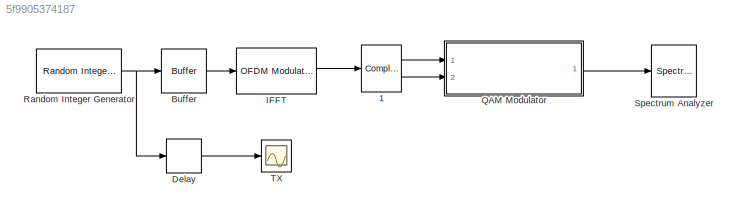
MODEL slx_5f9905374187
KIND model
BLOCK [Reference]    IFFT   REF=commofdm/OFDM Modulator
  CyclicPrefixLength = 0
  FFTLength = 8
  InsertDCNull = off
  NumGuardBandCarriers = [0 ; 0]
  NumSymbols = 1
  NumTransmitAntennas = 1
  PilotCarrierIndices = [12; 26; 40; 54]
  PilotInputPort = off
  Ports = [1, 1]
  SimulateUsing = Interpreted execution
  SourceBlock = commofdm/OFDM Modulator
  SourceType = OFDM Modulator
  WindowLength = 1
  Windowing = off
BLOCK [ComplexToRealImag]   1
  Ports = [1, 2]
  SampleTime = 1e-3
BLOCK [Buffer] Buffer
  N = 8
  TreatMby1Signals = One channel
BLOCK [Delay] Delay
  DelayLength = 16
  InitialCondition = 0
  InputPortMap = u0
  Ports = [1, 1]
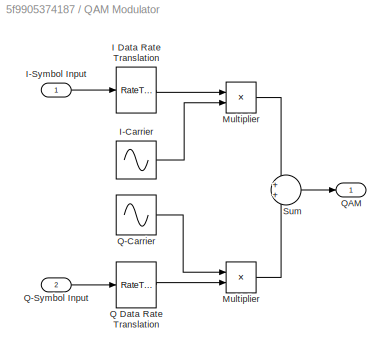
BLOCK [SubSystem] QAM Modulator
  Ports = [2, 1]
  RequestExecContextInheritance = off
BLOCK [Product] QAM Modulator/ Multiplier 
  InputSameDT = off
  OutDataTypeStr = Inherit: Inherit via internal rule
  Ports = [2, 1]
  SaturateOnIntegerOverflow = off
BLOCK [RateTransition] QAM Modulator/I Data Rate Translation
  OutPortSampleTime = 2e-6
BLOCK [Sin] QAM Modulator/I-Carrier
  Amplitude = 5
  Frequency = 40000*pi
  Phase = pi/2
  Ports = [0, 1]
  SampleTime = 2e-6
  VectorParams1D = off
BLOCK [Inport] QAM Modulator/I-Symbol Input
  IconDisplay = Port number
BLOCK [Product] QAM Modulator/Multiplier
  InputSameDT = off
  OutDataTypeStr = Inherit: Inherit via internal rule
  Ports = [2, 1]
  SaturateOnIntegerOverflow = off
BLOCK [RateTransition] QAM Modulator/Q Data Rate Translation
  OutPortSampleTime = 2e-6
BLOCK [Sin] QAM Modulator/Q-Carrier
  Amplitude = 5
  Frequency = 40000*pi
  Ports = [0, 1]
  SampleTime = 2e-6
  VectorParams1D = off
BLOCK [Inport] QAM Modulator/Q-Symbol Input
  IconDisplay = Port number
  Port = 2
BLOCK [Outport] QAM Modulator/QAM
  IconDisplay = Port number
BLOCK [Sum] QAM Modulator/Sum
  IconShape = round
  InputSameDT = off
  OutDataTypeStr = Inherit: Inherit via internal rule
  Ports = [2, 1]
  SaturateOnIntegerOverflow = off
BLOCK [Reference] Random Integer Generator  REF=commrandsrc2/Random Integer
Generator
  Ports = [0, 1]
  SourceBlock = commrandsrc2/Random Integer\nGenerator
  SourceType = Random Integer Generator
  Ts = 1e-3
  frameBased = off
  mul = 2
  orient = on
  outDataType = double
  sampPerFrame = 50
  seed = randseed
BLOCK [SpectrumAnalyzer] Spectrum Analyzer
  Ports = [1]
  ScopeSpecificationString = spbscopes.SpectrumAnalyzerBlockCfg('CurrentConfiguration', extmgr.ConfigurationSet(extmgr.Configuration('Core','General UI',true),extmgr.Configuration('Core','Source UI',true),extmgr.Configuration('Sources','WiredSimulink',true),extmgr.Configuration('Visuals','Spectrum',true,'AxesProperties',struct('Color',[0 0 0],'XColor',[0.686274509803922 0.686274509803922 0.686274509803922],'YColor',[0.6862745...<+6853ch>
BLOCK [Scope] TX
  Floating = off
  NumInputPorts = 1
  Ports = [1]
  SaveName = ScopeData2
  ShowLegends = off
  YMax = 8
  YMin = -8
LINE    IFFT :1 ->   1:1
LINE   1:1 -> QAM Modulator:1
LINE   1:2 -> QAM Modulator:2
LINE Buffer:1 ->    IFFT :1
LINE Delay:1 -> TX:1
LINE QAM Modulator/ Multiplier :1 -> QAM Modulator/Sum:2
LINE QAM Modulator/I Data Rate Translation:1 -> QAM Modulator/Multiplier:1
LINE QAM Modulator/I-Carrier:1 -> QAM Modulator/Multiplier:2
LINE QAM Modulator/I-Symbol Input:1 -> QAM Modulator/I Data Rate Translation:1
LINE QAM Modulator/Multiplier:1 -> QAM Modulator/Sum:1
LINE QAM Modulator/Q Data Rate Translation:1 -> QAM Modulator/ Multiplier :2
LINE QAM Modulator/Q-Carrier:1 -> QAM Modulator/ Multiplier :1
LINE QAM Modulator/Q-Symbol Input:1 -> QAM Modulator/Q Data Rate Translation:1
LINE QAM Modulator/Sum:1 -> QAM Modulator/QAM:1
LINE QAM Modulator:1 -> Spectrum Analyzer:1
NET Random Integer Generator:1 -> Buffer:1, Delay:1
note: NET lines group one-source signal fan-out (src -> all destinations, sorted); 1:1 wires keep LINE
